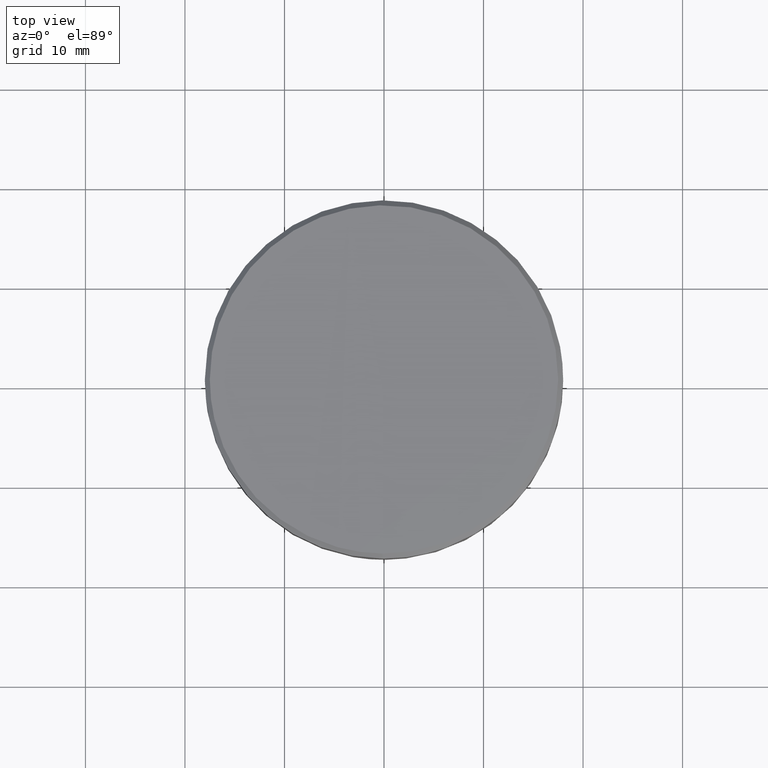
[diagram: clean part render]
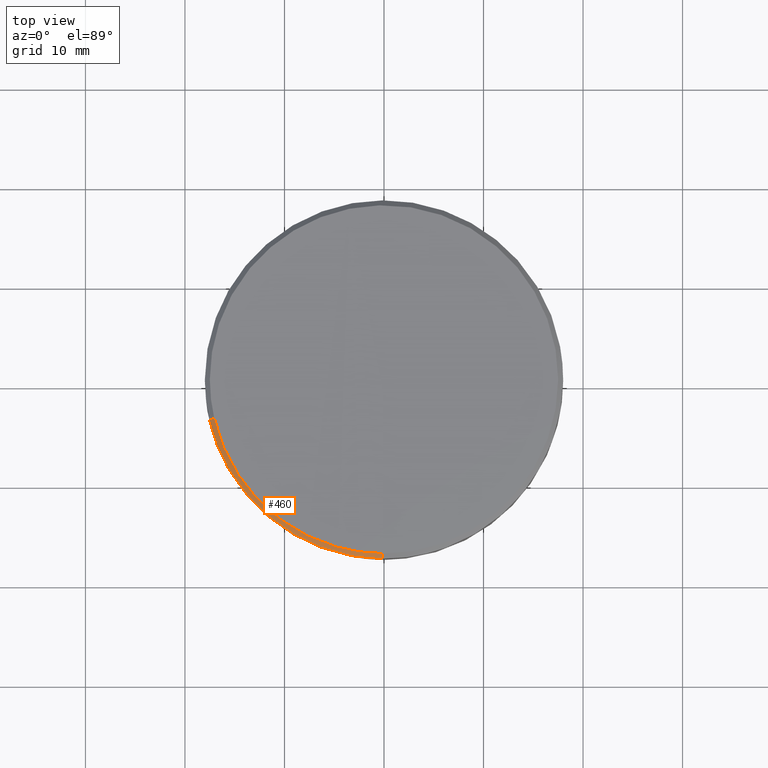
[diagram: same view with one face highlighted and labeled with its STEP entity id]
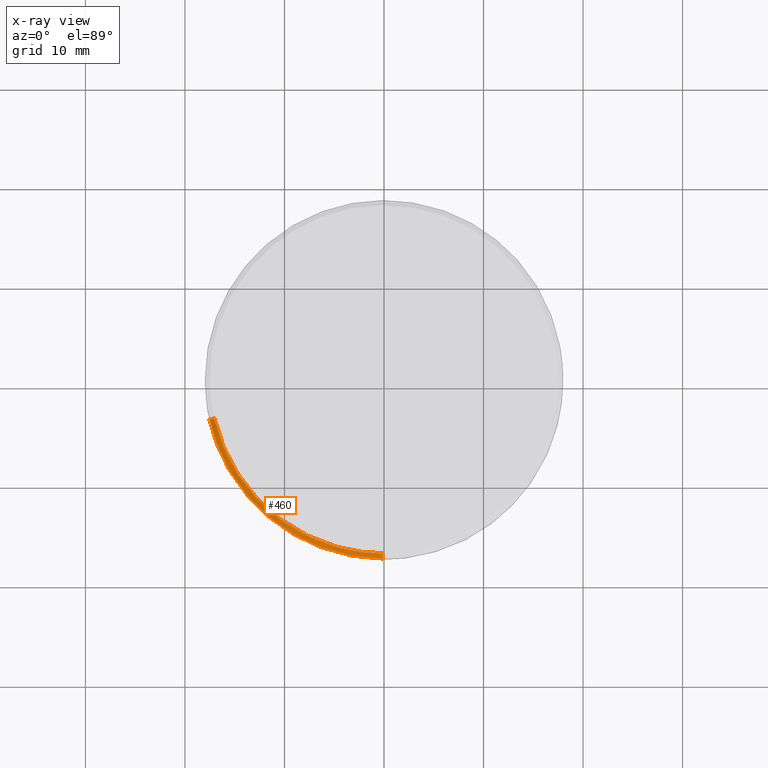
[diagram: x-ray of the same camera — body ghosted, the highlighted face saturated]
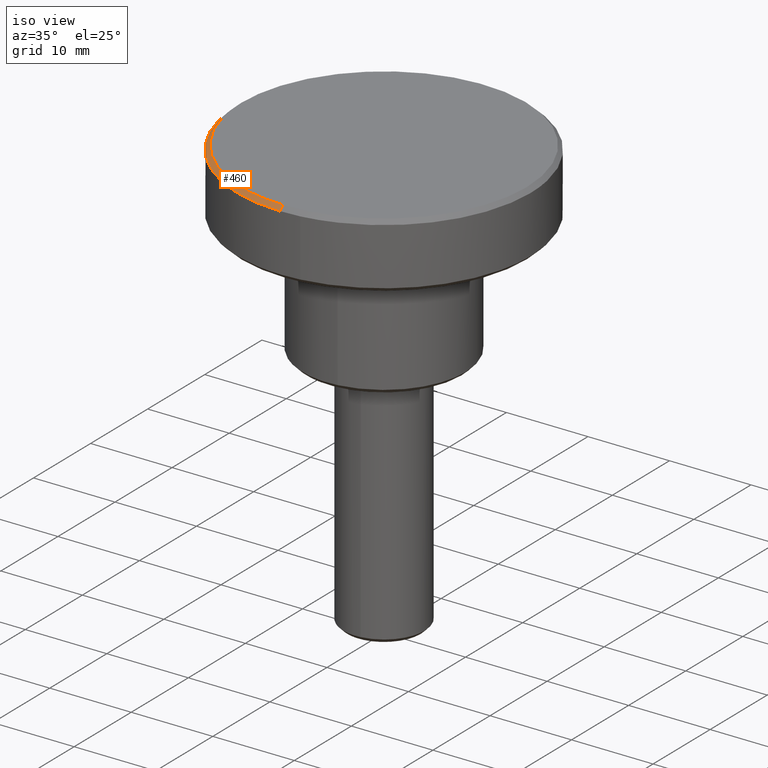
[diagram: same view with one face highlighted and labeled with its STEP entity id]
A machine part, top view. The second image highlights one B-rep face of the part: STEP entity #460.
The next image is the same camera in x-ray: the body ghosted, the highlighted face saturated — about 0% of this face is hidden behind the body in this view.
A second angle (iso view) of the same face is appended — the face is thin or edge-on in the first view.
In plain terms, the highlighted face is a freeform B-spline surface patch.
Its self-contained STEP definition (entity closure, byte-faithful):
#271=CARTESIAN_POINT('',(-17.535926757209651,-4.060944811981644,22.499999999994941));
#272=VERTEX_POINT('',#271);
#288=CARTESIAN_POINT('',(-17.048817680622559,-3.948140789408552,22.999999999997168));
#289=VERTEX_POINT('',#288);
#290=CARTESIAN_POINT('',(-17.048817680622559,-3.948140789408552,22.999999999997168));
#291=CARTESIAN_POINT('',(-17.535926757209651,-4.060944811981644,22.499999999994941));
#292=QUASI_UNIFORM_CURVE('',1,(#290,#291),.UNSPECIFIED.,.F.,.U.);
#293=EDGE_CURVE('',#289,#272,#292,.T.);
#327=CARTESIAN_POINT('',(-0.152714371277438,-17.499333653630121,22.999999999992411));
#328=VERTEX_POINT('',#327);
#344=CARTESIAN_POINT('',(-0.157077639032333,-17.999314615162909,22.499999999991630));
#345=VERTEX_POINT('',#344);
#346=CARTESIAN_POINT('',(-0.152714371277438,-17.499333653630121,22.999999999992411));
#347=CARTESIAN_POINT('',(-0.157077639032333,-17.999314615162909,22.499999999991630));
#348=QUASI_UNIFORM_CURVE('',1,(#346,#347),.UNSPECIFIED.,.F.,.U.);
#349=EDGE_CURVE('',#328,#345,#348,.T.);
#416=CARTESIAN_POINT('',(-0.152605289527814,-17.486834129584739,23.012499999999999));
#417=CARTESIAN_POINT('',(-13.928556243240688,-17.366613226919718,23.012500000000003));
#418=CARTESIAN_POINT('',(-17.036639953710658,-3.945320688819989,23.012499999999999));
#419=CARTESIAN_POINT('',(-0.157189447706803,-18.012126627294339,22.487187500000001));
#420=CARTESIAN_POINT('',(-14.346960514950569,-17.888294371209376,22.487187500000001));
#421=CARTESIAN_POINT('',(-17.548408927302248,-4.063835415015588,22.487187499999994));
#429=(BOUNDED_SURFACE()B_SPLINE_SURFACE(2,1,((#416,#419),(#417,#420),(#418,#421)),.UNSPECIFIED.,.F.,.F.,.U.)B_SPLINE_SURFACE_WITH_KNOTS((3,3),(2,2),(0.0,24.959837908595269),(0.0,1.0),.UNSPECIFIED.)GEOMETRIC_REPRESENTATION_ITEM()RATIONAL_B_SPLINE_SURFACE(((1.0,1.0),(0.753969696196700,0.753969696196700),(0.921270302782944,0.921270302782944)))REPRESENTATION_ITEM('')SURFACE());
#430=CARTESIAN_POINT('',(-0.157077639032333,-17.999314615162913,22.499999999991630));
#431=CARTESIAN_POINT('',(-14.336755532664897,-17.875570440764317,22.499999999999993));
#432=CARTESIAN_POINT('',(-17.535926757209651,-4.060944811981644,22.499999999994941));
#440=(BOUNDED_CURVE()B_SPLINE_CURVE(2,(#430,#431,#432),.UNSPECIFIED.,.F.,.U.)B_SPLINE_CURVE_WITH_KNOTS((3,3),(0.751539894336191,0.961422971783810),.UNSPECIFIED.)CURVE()GEOMETRIC_REPRESENTATION_ITEM()RATIONAL_B_SPLINE_CURVE((0.996414028097619,0.753549905437709,0.923556557441491))REPRESENTATION_ITEM(''));
#441=EDGE_CURVE('',#345,#272,#440,.T.);
#442=ORIENTED_EDGE('',*,*,#441,.F.);
#443=ORIENTED_EDGE('',*,*,#349,.F.);
#444=CARTESIAN_POINT('',(-17.048817680622559,-3.948140789408552,22.999999999997165));
#445=CARTESIAN_POINT('',(-13.938512323452059,-17.379026817415777,23.000000000000004));
#446=CARTESIAN_POINT('',(-0.152714371277438,-17.499333653630121,22.999999999992411));
#454=(BOUNDED_CURVE()B_SPLINE_CURVE(2,(#444,#445,#446),.UNSPECIFIED.,.F.,.U.)B_SPLINE_CURVE_WITH_KNOTS((3,3),(0.538577028215852,0.748460105663889),.UNSPECIFIED.)CURVE()GEOMETRIC_REPRESENTATION_ITEM()RATIONAL_B_SPLINE_CURVE((0.923556557442037,0.753549905437253,0.996414028097804))REPRESENTATION_ITEM(''));
#455=EDGE_CURVE('',#289,#328,#454,.T.);
#456=ORIENTED_EDGE('',*,*,#455,.F.);
#457=ORIENTED_EDGE('',*,*,#293,.T.);
#458=EDGE_LOOP('',(#442,#443,#456,#457));
#459=FACE_OUTER_BOUND('',#458,.T.);
#460=ADVANCED_FACE('',(#459),#429,.T.);